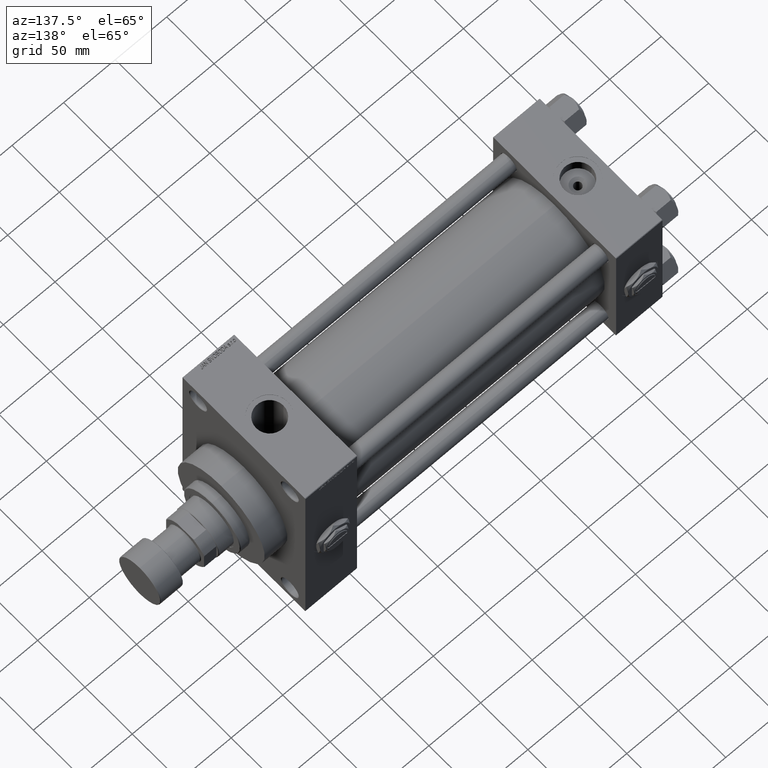
[diagram: clean part render]
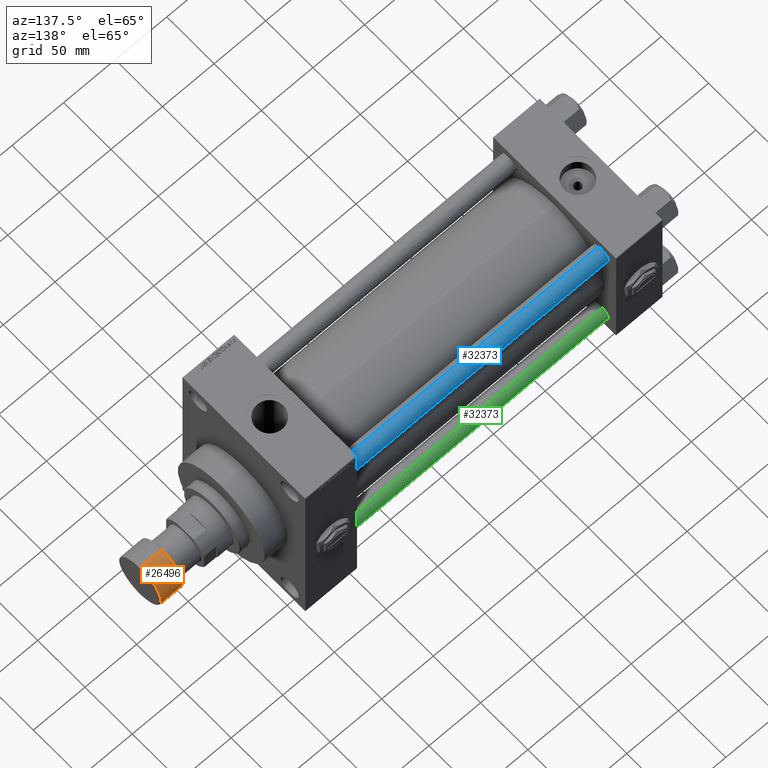
[diagram: same view with three faces highlighted in distinct colors, each labeled with its STEP entity id]
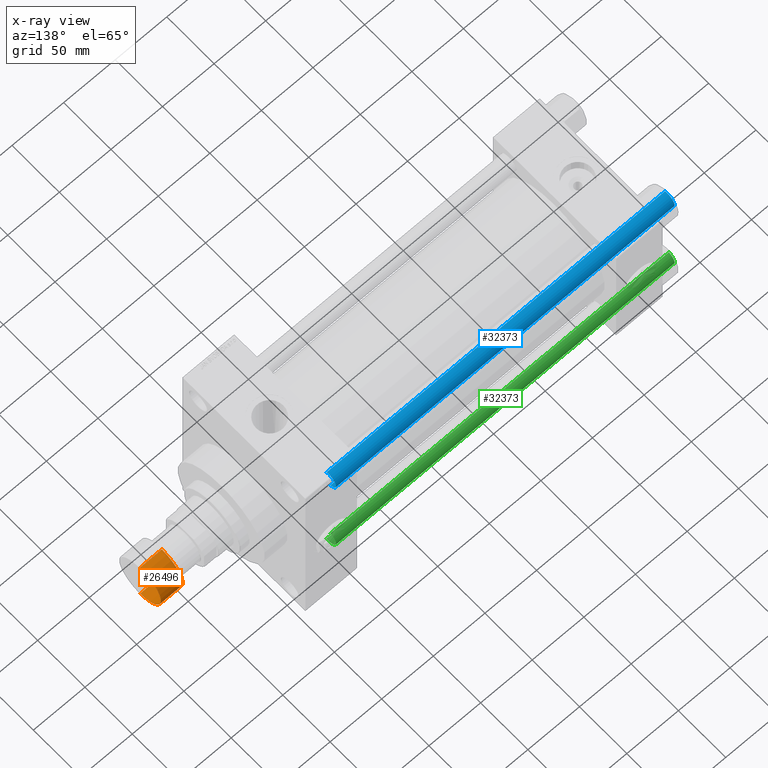
[diagram: x-ray of the same camera — body ghosted, the three highlighted faces saturated]
A machine part, auxiliary view with three faces highlighted in distinct colors.
The next image is the same camera in x-ray (body ghosted, the three faces saturated) — at least one of them is partly hidden behind the body in this view.
Their STEP definitions:

[orange] entity #26496 — the highlighted cylindrical surface (edge-blend (fillet) strip) has radius 22 mm, axis along (1, 0, 0).
#306 = EDGE_LOOP ( 'NONE', ( #18218, #41538, #36238, #1109 ) ) ;
#1109 = ORIENTED_EDGE ( 'NONE', *, *, #47163, .F. ) ;
#1199 = EDGE_CURVE ( 'NONE', #15231, #46695, #24302, .T. ) ;
#1459 = FACE_OUTER_BOUND ( 'NONE', #306, .T. ) ;
#1806 = CARTESIAN_POINT ( 'NONE',  ( 22.00000000000000000, 0.000000000000000000, -21.50000000000000000 ) ) ;
#2718 = VECTOR ( 'NONE', #29558, 1000.000000000000000 ) ;
#3548 = DIRECTION ( 'NONE',  ( -0.000000000000000000, -0.000000000000000000, -1.000000000000000000 ) ) ;
#4868 = VECTOR ( 'NONE', #4974, 1000.000000000000000 ) ;
#4974 = DIRECTION ( 'NONE',  ( 0.000000000000000000, 0.000000000000000000, 1.000000000000000000 ) ) ;
#7607 = DIRECTION ( 'NONE',  ( 1.000000000000000000, 0.000000000000000000, 0.000000000000000000 ) ) ;
#8602 = CARTESIAN_POINT ( 'NONE',  ( 0.000000000000000000, 0.000000000000000000, -0.5000000000000004441 ) ) ;
#9564 = DIRECTION ( 'NONE',  ( 0.000000000000000000, 0.000000000000000000, 1.000000000000000000 ) ) ;
#9808 = CYLINDRICAL_SURFACE ( 'NONE', #44401, 22.00000000000000000 ) ;
#10966 = LINE ( 'NONE', #18112, #2718 ) ;
#12292 = EDGE_CURVE ( 'NONE', #46695, #28451, #27766, .T. ) ;
#12321 = AXIS2_PLACEMENT_3D ( 'NONE', #8602, #3548, #7607 ) ;
#15126 = CARTESIAN_POINT ( 'NONE',  ( 0.000000000000000000, 0.000000000000000000, -21.50000000000000000 ) ) ;
#15231 = VERTEX_POINT ( 'NONE', #28965 ) ;
#18112 = CARTESIAN_POINT ( 'NONE',  ( 22.00000000000000000, 0.000000000000000000, -22.00000000000000000 ) ) ;
#18218 = ORIENTED_EDGE ( 'NONE', *, *, #35020, .T. ) ;
#23508 = DIRECTION ( 'NONE',  ( 1.000000000000000000, 0.000000000000000000, 0.000000000000000000 ) ) ;
#24302 = LINE ( 'NONE', #39823, #4868 ) ;
#24577 = CARTESIAN_POINT ( 'NONE',  ( 0.000000000000000000, 0.000000000000000000, -22.00000000000000000 ) ) ;
#25080 = DIRECTION ( 'NONE',  ( 1.000000000000000000, 0.000000000000000000, 0.000000000000000000 ) ) ;
#26496 = ADVANCED_FACE ( 'NONE', ( #1459 ), #9808, .T. ) ;
#27766 = CIRCLE ( 'NONE', #12321, 22.00000000000000000 ) ;
#28451 = VERTEX_POINT ( 'NONE', #38166 ) ;
#28965 = CARTESIAN_POINT ( 'NONE',  ( -22.00000000000000000, 2.694222958124176809E-15, -21.50000000000000000 ) ) ;
#29558 = DIRECTION ( 'NONE',  ( 0.000000000000000000, 0.000000000000000000, 1.000000000000000000 ) ) ;
#29966 = AXIS2_PLACEMENT_3D ( 'NONE', #15126, #43336, #23508 ) ;
#33060 = VERTEX_POINT ( 'NONE', #1806 ) ;
#35020 = EDGE_CURVE ( 'NONE', #33060, #15231, #38093, .T. ) ;
#36238 = ORIENTED_EDGE ( 'NONE', *, *, #12292, .T. ) ;
#38093 = CIRCLE ( 'NONE', #29966, 22.00000000000000000 ) ;
#38166 = CARTESIAN_POINT ( 'NONE',  ( 22.00000000000000000, 0.000000000000000000, -0.5000000000000004441 ) ) ;
#39823 = CARTESIAN_POINT ( 'NONE',  ( -22.00000000000000000, 2.694222958124176809E-15, -22.00000000000000000 ) ) ;
#41538 = ORIENTED_EDGE ( 'NONE', *, *, #1199, .T. ) ;
#42362 = CARTESIAN_POINT ( 'NONE',  ( -22.00000000000000000, 2.694222958124176809E-15, -0.5000000000000004441 ) ) ;
#43336 = DIRECTION ( 'NONE',  ( 0.000000000000000000, 0.000000000000000000, 1.000000000000000000 ) ) ;
#44401 = AXIS2_PLACEMENT_3D ( 'NONE', #24577, #9564, #25080 ) ;
#46695 = VERTEX_POINT ( 'NONE', #42362 ) ;
#47163 = EDGE_CURVE ( 'NONE', #33060, #28451, #10966, .T. ) ;

[blue] entity #32373 — the highlighted cylindrical surface (edge-blend (fillet) strip) has radius 8 mm, axis along (-1, -0, 0).
#2704 = VECTOR ( 'NONE', #8622, 1000.000000000000000 ) ;
#3127 = AXIS2_PLACEMENT_3D ( 'NONE', #28153, #43674, #28396 ) ;
#6954 = EDGE_CURVE ( 'NONE', #19792, #7284, #45718, .T. ) ;
#7284 = VERTEX_POINT ( 'NONE', #29494 ) ;
#7393 = CARTESIAN_POINT ( 'NONE',  ( 8.000000000000000000, 9.797174393178825657E-16, 0.4999999999998894218 ) ) ;
#7526 = AXIS2_PLACEMENT_3D ( 'NONE', #10976, #31069, #37698 ) ;
#8622 = DIRECTION ( 'NONE',  ( -0.000000000000000000, -0.000000000000000000, -1.000000000000000000 ) ) ;
#10976 = CARTESIAN_POINT ( 'NONE',  ( 0.000000000000000000, 0.000000000000000000, 328.5000000000000000 ) ) ;
#11011 = ORIENTED_EDGE ( 'NONE', *, *, #6954, .T. ) ;
#11386 = EDGE_LOOP ( 'NONE', ( #11011, #43059, #27607, #44127 ) ) ;
#12875 = CYLINDRICAL_SURFACE ( 'NONE', #3127, 8.000000000000000000 ) ;
#14283 = EDGE_CURVE ( 'NONE', #19792, #20224, #17003, .T. ) ;
#14959 = CIRCLE ( 'NONE', #20625, 8.000000000000000000 ) ;
#16520 = EDGE_CURVE ( 'NONE', #49883, #20224, #14959, .T. ) ;
#17003 = LINE ( 'NONE', #42972, #2704 ) ;
#19792 = VERTEX_POINT ( 'NONE', #43001 ) ;
#20224 = VERTEX_POINT ( 'NONE', #48502 ) ;
#20625 = AXIS2_PLACEMENT_3D ( 'NONE', #39854, #40609, #36036 ) ;
#20810 = LINE ( 'NONE', #44956, #34105 ) ;
#27607 = ORIENTED_EDGE ( 'NONE', *, *, #16520, .T. ) ;
#28153 = CARTESIAN_POINT ( 'NONE',  ( 0.000000000000000000, 0.000000000000000000, 329.0000000000000000 ) ) ;
#28396 = DIRECTION ( 'NONE',  ( -1.000000000000000000, 0.000000000000000000, 0.000000000000000000 ) ) ;
#29494 = CARTESIAN_POINT ( 'NONE',  ( 8.000000000000000000, 9.797174393178825657E-16, 328.5000000000000000 ) ) ;
#31069 = DIRECTION ( 'NONE',  ( 0.000000000000000000, 0.000000000000000000, -1.000000000000000000 ) ) ;
#32373 = ADVANCED_FACE ( 'NONE', ( #39110 ), #12875, .T. ) ;
#34105 = VECTOR ( 'NONE', #40633, 1000.000000000000000 ) ;
#36036 = DIRECTION ( 'NONE',  ( 1.000000000000000000, 0.000000000000000000, 0.000000000000000000 ) ) ;
#36951 = EDGE_CURVE ( 'NONE', #7284, #49883, #20810, .T. ) ;
#37698 = DIRECTION ( 'NONE',  ( 1.000000000000000000, 0.000000000000000000, 0.000000000000000000 ) ) ;
#39110 = FACE_OUTER_BOUND ( 'NONE', #11386, .T. ) ;
#39854 = CARTESIAN_POINT ( 'NONE',  ( 0.000000000000000000, 0.000000000000000000, 0.4999999999998894218 ) ) ;
#40609 = DIRECTION ( 'NONE',  ( -0.000000000000000000, -0.000000000000000000, 1.000000000000000000 ) ) ;
#40633 = DIRECTION ( 'NONE',  ( -0.000000000000000000, -0.000000000000000000, -1.000000000000000000 ) ) ;
#42972 = CARTESIAN_POINT ( 'NONE',  ( -8.000000000000000000, 0.000000000000000000, 329.0000000000000000 ) ) ;
#43001 = CARTESIAN_POINT ( 'NONE',  ( -8.000000000000000000, 0.000000000000000000, 328.5000000000000000 ) ) ;
#43059 = ORIENTED_EDGE ( 'NONE', *, *, #36951, .T. ) ;
#43674 = DIRECTION ( 'NONE',  ( -0.000000000000000000, -0.000000000000000000, -1.000000000000000000 ) ) ;
#44127 = ORIENTED_EDGE ( 'NONE', *, *, #14283, .F. ) ;
#44956 = CARTESIAN_POINT ( 'NONE',  ( 8.000000000000000000, 9.797174393178825657E-16, 329.0000000000000000 ) ) ;
#45718 = CIRCLE ( 'NONE', #7526, 8.000000000000000000 ) ;
#48502 = CARTESIAN_POINT ( 'NONE',  ( -8.000000000000000000, 0.000000000000000000, 0.4999999999998894218 ) ) ;
#49883 = VERTEX_POINT ( 'NONE', #7393 ) ;

[green] entity #32373 — the highlighted cylindrical surface (edge-blend (fillet) strip) has radius 8 mm, axis along (1, -0, 0).
#2704 = VECTOR ( 'NONE', #8622, 1000.000000000000000 ) ;
#3127 = AXIS2_PLACEMENT_3D ( 'NONE', #28153, #43674, #28396 ) ;
#6954 = EDGE_CURVE ( 'NONE', #19792, #7284, #45718, .T. ) ;
#7284 = VERTEX_POINT ( 'NONE', #29494 ) ;
#7393 = CARTESIAN_POINT ( 'NONE',  ( 8.000000000000000000, 9.797174393178825657E-16, 0.4999999999998894218 ) ) ;
#7526 = AXIS2_PLACEMENT_3D ( 'NONE', #10976, #31069, #37698 ) ;
#8622 = DIRECTION ( 'NONE',  ( -0.000000000000000000, -0.000000000000000000, -1.000000000000000000 ) ) ;
#10976 = CARTESIAN_POINT ( 'NONE',  ( 0.000000000000000000, 0.000000000000000000, 328.5000000000000000 ) ) ;
#11011 = ORIENTED_EDGE ( 'NONE', *, *, #6954, .T. ) ;
#11386 = EDGE_LOOP ( 'NONE', ( #11011, #43059, #27607, #44127 ) ) ;
#12875 = CYLINDRICAL_SURFACE ( 'NONE', #3127, 8.000000000000000000 ) ;
#14283 = EDGE_CURVE ( 'NONE', #19792, #20224, #17003, .T. ) ;
#14959 = CIRCLE ( 'NONE', #20625, 8.000000000000000000 ) ;
#16520 = EDGE_CURVE ( 'NONE', #49883, #20224, #14959, .T. ) ;
#17003 = LINE ( 'NONE', #42972, #2704 ) ;
#19792 = VERTEX_POINT ( 'NONE', #43001 ) ;
#20224 = VERTEX_POINT ( 'NONE', #48502 ) ;
#20625 = AXIS2_PLACEMENT_3D ( 'NONE', #39854, #40609, #36036 ) ;
#20810 = LINE ( 'NONE', #44956, #34105 ) ;
#27607 = ORIENTED_EDGE ( 'NONE', *, *, #16520, .T. ) ;
#28153 = CARTESIAN_POINT ( 'NONE',  ( 0.000000000000000000, 0.000000000000000000, 329.0000000000000000 ) ) ;
#28396 = DIRECTION ( 'NONE',  ( -1.000000000000000000, 0.000000000000000000, 0.000000000000000000 ) ) ;
#29494 = CARTESIAN_POINT ( 'NONE',  ( 8.000000000000000000, 9.797174393178825657E-16, 328.5000000000000000 ) ) ;
#31069 = DIRECTION ( 'NONE',  ( 0.000000000000000000, 0.000000000000000000, -1.000000000000000000 ) ) ;
#32373 = ADVANCED_FACE ( 'NONE', ( #39110 ), #12875, .T. ) ;
#34105 = VECTOR ( 'NONE', #40633, 1000.000000000000000 ) ;
#36036 = DIRECTION ( 'NONE',  ( 1.000000000000000000, 0.000000000000000000, 0.000000000000000000 ) ) ;
#36951 = EDGE_CURVE ( 'NONE', #7284, #49883, #20810, .T. ) ;
#37698 = DIRECTION ( 'NONE',  ( 1.000000000000000000, 0.000000000000000000, 0.000000000000000000 ) ) ;
#39110 = FACE_OUTER_BOUND ( 'NONE', #11386, .T. ) ;
#39854 = CARTESIAN_POINT ( 'NONE',  ( 0.000000000000000000, 0.000000000000000000, 0.4999999999998894218 ) ) ;
#40609 = DIRECTION ( 'NONE',  ( -0.000000000000000000, -0.000000000000000000, 1.000000000000000000 ) ) ;
#40633 = DIRECTION ( 'NONE',  ( -0.000000000000000000, -0.000000000000000000, -1.000000000000000000 ) ) ;
#42972 = CARTESIAN_POINT ( 'NONE',  ( -8.000000000000000000, 0.000000000000000000, 329.0000000000000000 ) ) ;
#43001 = CARTESIAN_POINT ( 'NONE',  ( -8.000000000000000000, 0.000000000000000000, 328.5000000000000000 ) ) ;
#43059 = ORIENTED_EDGE ( 'NONE', *, *, #36951, .T. ) ;
#43674 = DIRECTION ( 'NONE',  ( -0.000000000000000000, -0.000000000000000000, -1.000000000000000000 ) ) ;
#44127 = ORIENTED_EDGE ( 'NONE', *, *, #14283, .F. ) ;
#44956 = CARTESIAN_POINT ( 'NONE',  ( 8.000000000000000000, 9.797174393178825657E-16, 329.0000000000000000 ) ) ;
#45718 = CIRCLE ( 'NONE', #7526, 8.000000000000000000 ) ;
#48502 = CARTESIAN_POINT ( 'NONE',  ( -8.000000000000000000, 0.000000000000000000, 0.4999999999998894218 ) ) ;
#49883 = VERTEX_POINT ( 'NONE', #7393 ) ;